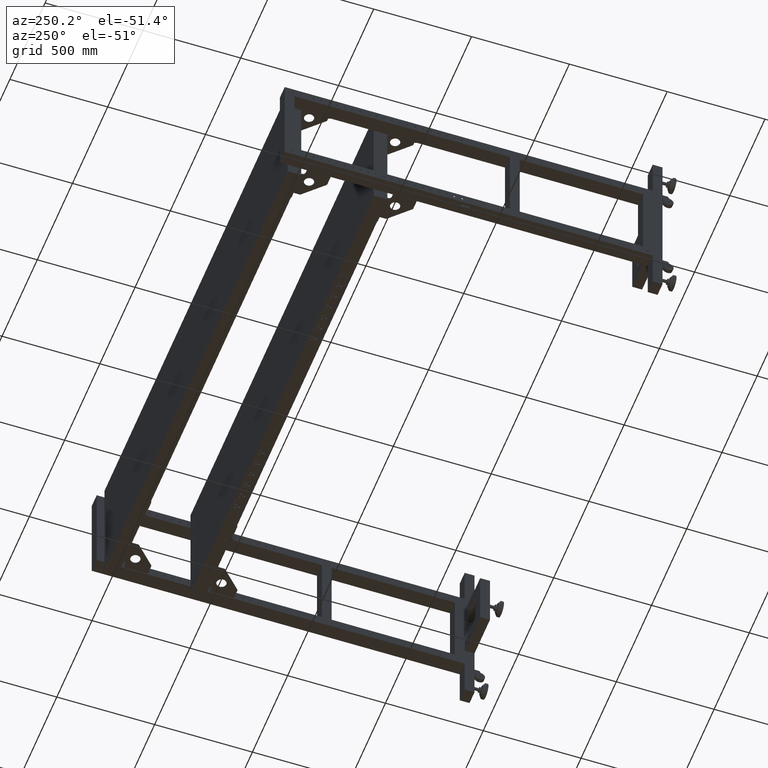
[diagram: clean part render]
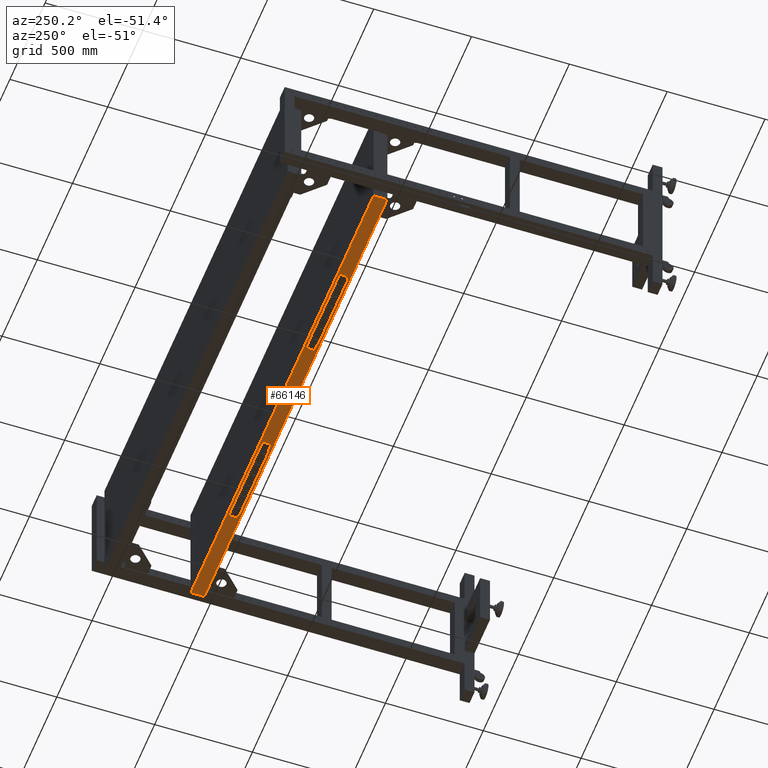
[diagram: same view with one face highlighted and labeled with its STEP entity id]
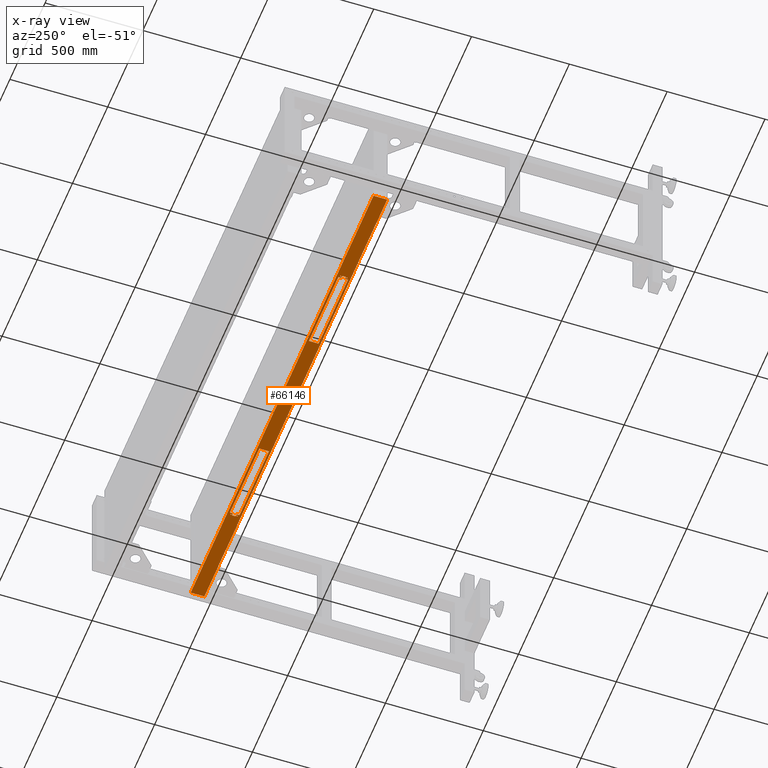
[diagram: x-ray of the same camera — body ghosted, the highlighted face saturated]
A machine part, auxiliary view. The second image highlights one B-rep face of the part: STEP entity #66146.
The next image is the same camera in x-ray: the body ghosted, the highlighted face saturated — about 0% of this face is hidden behind the body in this view.
In plain terms, the highlighted planar face has unit normal (0, -0, 1).
Its self-contained STEP definition (entity closure, byte-faithful):
#338 = VERTEX_POINT ( 'NONE', #43686 ) ;
#714 = VERTEX_POINT ( 'NONE', #44388 ) ;
#1466 = DIRECTION ( 'NONE',  ( 0.000000000000000000, 1.000000000000000000, 0.000000000000000000 ) ) ;
#1837 = ORIENTED_EDGE ( 'NONE', *, *, #66647, .T. ) ;
#2738 = CARTESIAN_POINT ( 'NONE',  ( -738.1724874371861915, 546.4410804020125170, -299.9999999999999432 ) ) ;
#2924 = CARTESIAN_POINT ( 'NONE',  ( 384.0460956221082256, 556.9410804020127443, -299.9999999999999432 ) ) ;
#3379 = ORIENTED_EDGE ( 'NONE', *, *, #38644, .F. ) ;
#3578 = CARTESIAN_POINT ( 'NONE',  ( 1329.827512562815855, 556.9410804020129717, -299.9999999999999432 ) ) ;
#3623 = LINE ( 'NONE', #21695, #32674 ) ;
#3806 = VERTEX_POINT ( 'NONE', #70338 ) ;
#4609 = ORIENTED_EDGE ( 'NONE', *, *, #36383, .F. ) ;
#4678 = EDGE_CURVE ( 'NONE', #26966, #43397, #72361, .T. ) ;
#5018 = DIRECTION ( 'NONE',  ( 0.000000000000000000, 1.000000000000000000, 0.000000000000000000 ) ) ;
#5571 = EDGE_LOOP ( 'NONE', ( #12234, #57216 ) ) ;
#5772 = CARTESIAN_POINT ( 'NONE',  ( 384.0460956221082256, 497.4410804020126875, -300.0000000000001137 ) ) ;
#6065 = CARTESIAN_POINT ( 'NONE',  ( -738.1724874371861915, 531.9410804020385513, -300.0000000000000000 ) ) ;
#6454 = DIRECTION ( 'NONE',  ( -2.399989573374237993E-16, 1.000000000000000000, 2.999999999999999839E-15 ) ) ;
#6612 = CARTESIAN_POINT ( 'NONE',  ( -320.3910704964782781, 546.4410804020125170, -299.9999999999999432 ) ) ;
#6682 = DIRECTION ( 'NONE',  ( -1.000000000000000000, -2.399989573374237993E-16, 0.000000000000000000 ) ) ;
#7322 = VERTEX_POINT ( 'NONE', #36478 ) ;
#7651 = VERTEX_POINT ( 'NONE', #52524 ) ;
#8101 = DIRECTION ( 'NONE',  ( 0.000000000000000000, 1.000000000000000000, 0.000000000000000000 ) ) ;
#8400 = FACE_OUTER_BOUND ( 'NONE', #51260, .T. ) ;
#8764 = LINE ( 'NONE', #2738, #9461 ) ;
#9438 = CARTESIAN_POINT ( 'NONE',  ( -320.3910704964782781, 497.4410804020126307, -300.0000000000001137 ) ) ;
#9461 = VECTOR ( 'NONE', #40491, 1000.000000000000000 ) ;
#10168 = VERTEX_POINT ( 'NONE', #6065 ) ;
#10387 = DIRECTION ( 'NONE',  ( 0.000000000000000000, -2.999999999999999839E-15, 1.000000000000000000 ) ) ;
#10477 = CARTESIAN_POINT ( 'NONE',  ( -738.1724874371861915, 511.9410804020125738, -300.0000000000000568 ) ) ;
#11096 = CARTESIAN_POINT ( 'NONE',  ( 801.8275125628161959, 546.4410804020127443, -299.9999999999999432 ) ) ;
#11117 = ORIENTED_EDGE ( 'NONE', *, *, #22255, .F. ) ;
#11310 = CARTESIAN_POINT ( 'NONE',  ( -751.1724874371860778, 511.9410804020125738, -300.0000000000000568 ) ) ;
#11528 = VECTOR ( 'NONE', #70311, 1000.000000000000000 ) ;
#11845 = CARTESIAN_POINT ( 'NONE',  ( -738.1724874371861915, 546.4410804020125170, -299.9999999999999432 ) ) ;
#12052 = EDGE_CURVE ( 'NONE', #58368, #52206, #27936, .T. ) ;
#12120 = VERTEX_POINT ( 'NONE', #31108 ) ;
#12234 = ORIENTED_EDGE ( 'NONE', *, *, #31163, .F. ) ;
#12388 = VECTOR ( 'NONE', #25430, 1000.000000000000000 ) ;
#12480 = LINE ( 'NONE', #49473, #71009 ) ;
#12534 = AXIS2_PLACEMENT_3D ( 'NONE', #43160, #24677, #48030 ) ;
#12706 = VECTOR ( 'NONE', #74913, 1000.000000000000000 ) ;
#13252 = AXIS2_PLACEMENT_3D ( 'NONE', #60122, #29935, #5018 ) ;
#13256 = EDGE_LOOP ( 'NONE', ( #69531, #57979 ) ) ;
#13673 = ORIENTED_EDGE ( 'NONE', *, *, #74057, .T. ) ;
#13840 = VECTOR ( 'NONE', #19853, 1000.000000000000000 ) ;
#14062 = FACE_BOUND ( 'NONE', #65938, .T. ) ;
#14096 = VECTOR ( 'NONE', #6682, 1000.000000000000000 ) ;
#14098 = DIRECTION ( 'NONE',  ( 0.000000000000000000, 1.000000000000000000, 0.000000000000000000 ) ) ;
#14570 = CARTESIAN_POINT ( 'NONE',  ( -751.1724874371860778, 531.9410804020390060, -300.0000000000000000 ) ) ;
#14655 = VERTEX_POINT ( 'NONE', #47767 ) ;
#14793 = LINE ( 'NONE', #76342, #11528 ) ;
#15024 = AXIS2_PLACEMENT_3D ( 'NONE', #65495, #10387, #46587 ) ;
#15423 = CIRCLE ( 'NONE', #69412, 2.600000000000046718 ) ;
#15957 = CARTESIAN_POINT ( 'NONE',  ( 810.8275125628160822, 537.9410804020128580, -299.9999999999999432 ) ) ;
#16357 = ORIENTED_EDGE ( 'NONE', *, *, #27205, .T. ) ;
#16456 = LINE ( 'NONE', #22098, #17083 ) ;
#16468 = ORIENTED_EDGE ( 'NONE', *, *, #48488, .F. ) ;
#16501 = DIRECTION ( 'NONE',  ( 0.000000000000000000, 2.999999999999999839E-15, -1.000000000000000000 ) ) ;
#16813 = CARTESIAN_POINT ( 'NONE',  ( 810.8275125628160822, 505.9410804020128012, -300.0000000000000568 ) ) ;
#17083 = VECTOR ( 'NONE', #71177, 1000.000000000000000 ) ;
#17588 = DIRECTION ( 'NONE',  ( 1.000000000000000000, 6.251255769285789110E-17, 1.875376730785736675E-31 ) ) ;
#17666 = EDGE_CURVE ( 'NONE', #24207, #58607, #77292, .T. ) ;
#17744 = VECTOR ( 'NONE', #47534, 1000.000000000000000 ) ;
#18943 = EDGE_CURVE ( 'NONE', #7651, #74224, #64832, .T. ) ;
#19526 = LINE ( 'NONE', #50105, #14096 ) ;
#19556 = AXIS2_PLACEMENT_3D ( 'NONE', #15957, #64660, #77120 ) ;
#19853 = DIRECTION ( 'NONE',  ( 0.000000000000000000, -1.000000000000000000, -2.603491776919587014E-15 ) ) ;
#20111 = CIRCLE ( 'NONE', #15024, 5.000000000000004441 ) ;
#20323 = CARTESIAN_POINT ( 'NONE',  ( 810.8275125628160822, 537.9410804020128580, -299.9999999999999432 ) ) ;
#20475 = DIRECTION ( 'NONE',  ( 2.399989573374237993E-16, -1.000000000000000000, -2.603491776919587014E-15 ) ) ;
#20732 = ORIENTED_EDGE ( 'NONE', *, *, #57660, .F. ) ;
#20742 = LINE ( 'NONE', #33605, #29626 ) ;
#20851 = CARTESIAN_POINT ( 'NONE',  ( -1266.172487437185964, 486.9410804020126307, -300.0000000000001137 ) ) ;
#21210 = ORIENTED_EDGE ( 'NONE', *, *, #39215, .T. ) ;
#21695 = CARTESIAN_POINT ( 'NONE',  ( 814.8275125628160822, 511.9410804020128012, -300.0000000000000568 ) ) ;
#22098 = CARTESIAN_POINT ( 'NONE',  ( -320.3910704964782781, 556.9410804020126307, -299.9999999999999432 ) ) ;
#22255 = EDGE_CURVE ( 'NONE', #38187, #10168, #26643, .T. ) ;
#22550 = LINE ( 'NONE', #2924, #26513 ) ;
#23849 = CIRCLE ( 'NONE', #49528, 2.600000000000046718 ) ;
#23980 = VECTOR ( 'NONE', #53325, 1000.000000000000000 ) ;
#24207 = VERTEX_POINT ( 'NONE', #67271 ) ;
#24677 = DIRECTION ( 'NONE',  ( 7.199968720122713773E-31, -2.999999999999999839E-15, 1.000000000000000000 ) ) ;
#25393 = ORIENTED_EDGE ( 'NONE', *, *, #39020, .T. ) ;
#25430 = DIRECTION ( 'NONE',  ( -1.000000000000000000, -2.399989573374237993E-16, 0.000000000000000000 ) ) ;
#25583 = VERTEX_POINT ( 'NONE', #76102 ) ;
#26513 = VECTOR ( 'NONE', #45526, 1000.000000000000000 ) ;
#26521 = LINE ( 'NONE', #51081, #41329 ) ;
#26643 = LINE ( 'NONE', #51201, #17744 ) ;
#26887 = VERTEX_POINT ( 'NONE', #53152 ) ;
#26890 = CARTESIAN_POINT ( 'NONE',  ( 1329.827512562815855, 486.9410804020129149, -300.0000000000001137 ) ) ;
#26966 = VERTEX_POINT ( 'NONE', #46712 ) ;
#27205 = EDGE_CURVE ( 'NONE', #42081, #25583, #20111, .T. ) ;
#27539 = CARTESIAN_POINT ( 'NONE',  ( 801.8275125628161959, 511.9410804020128012, -300.0000000000000568 ) ) ;
#27936 = CIRCLE ( 'NONE', #12534, 2.600000000000046718 ) ;
#28790 = CARTESIAN_POINT ( 'NONE',  ( 801.8275125628161959, 497.4410804020128012, -300.0000000000001137 ) ) ;
#29626 = VECTOR ( 'NONE', #69834, 1000.000000000000000 ) ;
#29838 = VECTOR ( 'NONE', #48723, 1000.000000000000000 ) ;
#29935 = DIRECTION ( 'NONE',  ( -7.199968720122713773E-31, 2.999999999999999839E-15, -1.000000000000000000 ) ) ;
#30345 = AXIS2_PLACEMENT_3D ( 'NONE', #3578, #75591, #20475 ) ;
#30408 = ORIENTED_EDGE ( 'NONE', *, *, #74958, .F. ) ;
#30598 = LINE ( 'NONE', #11310, #29838 ) ;
#30724 = VERTEX_POINT ( 'NONE', #20851 ) ;
#30746 = ORIENTED_EDGE ( 'NONE', *, *, #32185, .F. ) ;
#31041 = CIRCLE ( 'NONE', #56793, 2.600000000000046718 ) ;
#31108 = CARTESIAN_POINT ( 'NONE',  ( 1329.827512562815855, 556.9410804020129717, -299.9999999999999432 ) ) ;
#31163 = EDGE_CURVE ( 'NONE', #338, #7322, #59405, .T. ) ;
#31462 = LINE ( 'NONE', #56009, #12388 ) ;
#31524 = LINE ( 'NONE', #50059, #13840 ) ;
#31651 = VERTEX_POINT ( 'NONE', #26890 ) ;
#31893 = CARTESIAN_POINT ( 'NONE',  ( 809.8275125628161959, 531.9410804020390060, -300.0000000000000000 ) ) ;
#31920 = VECTOR ( 'NONE', #33844, 1000.000000000000000 ) ;
#32095 = VECTOR ( 'NONE', #70878, 1000.000000000000000 ) ;
#32185 = EDGE_CURVE ( 'NONE', #48181, #30724, #31524, .T. ) ;
#32407 = CARTESIAN_POINT ( 'NONE',  ( 1329.827512562815855, 556.9410804020129717, -299.9999999999999432 ) ) ;
#32674 = VECTOR ( 'NONE', #35757, 1000.000000000000000 ) ;
#32774 = LINE ( 'NONE', #32407, #69336 ) ;
#33098 = ORIENTED_EDGE ( 'NONE', *, *, #60429, .T. ) ;
#33279 = ORIENTED_EDGE ( 'NONE', *, *, #59544, .T. ) ;
#33381 = CARTESIAN_POINT ( 'NONE',  ( 809.8275125628161959, 516.9410804020128580, -300.0000000000000568 ) ) ;
#33605 = CARTESIAN_POINT ( 'NONE',  ( 814.8275125628160822, 531.9410804020392334, -300.0000000000000000 ) ) ;
#33844 = DIRECTION ( 'NONE',  ( -3.086684101596207610E-14, 1.000000000000000000, 2.042911185667979886E-15 ) ) ;
#34118 = FACE_BOUND ( 'NONE', #43176, .T. ) ;
#34189 = DIRECTION ( 'NONE',  ( 0.000000000000000000, -2.999999999999999839E-15, 1.000000000000000000 ) ) ;
#35757 = DIRECTION ( 'NONE',  ( 1.000000000000000000, -1.417154992000797826E-14, -4.323464663203620161E-29 ) ) ;
#36383 = EDGE_CURVE ( 'NONE', #77081, #79418, #45829, .T. ) ;
#36478 = CARTESIAN_POINT ( 'NONE',  ( -747.1724874371860778, 508.5410804020125966, -300.0000000000000568 ) ) ;
#37118 = CARTESIAN_POINT ( 'NONE',  ( -1266.172487437185964, 556.9410804020126307, -299.9999999999999432 ) ) ;
#38187 = VERTEX_POINT ( 'NONE', #59446 ) ;
#38408 = VERTEX_POINT ( 'NONE', #9438 ) ;
#38644 = EDGE_CURVE ( 'NONE', #42081, #714, #57605, .T. ) ;
#38674 = DIRECTION ( 'NONE',  ( 0.000000000000000000, 2.999999999999999839E-15, -1.000000000000000000 ) ) ;
#38855 = ORIENTED_EDGE ( 'NONE', *, *, #44958, .F. ) ;
#39020 = EDGE_CURVE ( 'NONE', #31651, #30724, #19526, .T. ) ;
#39215 = EDGE_CURVE ( 'NONE', #12120, #31651, #32774, .T. ) ;
#39403 = DIRECTION ( 'NONE',  ( -7.199968720122713773E-31, 2.999999999999999839E-15, -1.000000000000000000 ) ) ;
#40491 = DIRECTION ( 'NONE',  ( 0.000000000000000000, 1.000000000000000000, 2.042911185666243997E-15 ) ) ;
#40539 = LINE ( 'NONE', #58664, #56541 ) ;
#40756 = VERTEX_POINT ( 'NONE', #31893 ) ;
#40787 = EDGE_CURVE ( 'NONE', #3806, #14655, #42365, .T. ) ;
#41329 = VECTOR ( 'NONE', #6454, 1000.000000000000000 ) ;
#41678 = EDGE_CURVE ( 'NONE', #40756, #7651, #20742, .T. ) ;
#41728 = DIRECTION ( 'NONE',  ( 7.199968720122713773E-31, -2.999999999999999839E-15, 1.000000000000000000 ) ) ;
#42081 = VERTEX_POINT ( 'NONE', #46362 ) ;
#42365 = CIRCLE ( 'NONE', #48819, 2.600000000000046718 ) ;
#42707 = VERTEX_POINT ( 'NONE', #11845 ) ;
#42869 = CARTESIAN_POINT ( 'NONE',  ( 384.0460956221082256, 546.4410804020126307, -299.9999999999999432 ) ) ;
#42986 = ORIENTED_EDGE ( 'NONE', *, *, #73595, .T. ) ;
#43160 = CARTESIAN_POINT ( 'NONE',  ( 810.8275125628160822, 505.9410804020128012, -300.0000000000000568 ) ) ;
#43176 = EDGE_LOOP ( 'NONE', ( #30408, #38855, #69047, #11117, #33098, #3379, #16357, #43196, #73372, #16468 ) ) ;
#43196 = ORIENTED_EDGE ( 'NONE', *, *, #58993, .F. ) ;
#43397 = VERTEX_POINT ( 'NONE', #10477 ) ;
#43686 = CARTESIAN_POINT ( 'NONE',  ( -747.1724874371860778, 503.3410804020126648, -300.0000000000000568 ) ) ;
#44023 = AXIS2_PLACEMENT_3D ( 'NONE', #20323, #56966, #1466 ) ;
#44388 = CARTESIAN_POINT ( 'NONE',  ( -751.1724874371860778, 526.9410804020388923, -300.0000000000000000 ) ) ;
#44958 = EDGE_CURVE ( 'NONE', #42707, #56015, #40539, .T. ) ;
#44959 = EDGE_CURVE ( 'NONE', #52206, #58368, #15423, .T. ) ;
#45266 = AXIS2_PLACEMENT_3D ( 'NONE', #71617, #16501, #46680 ) ;
#45526 = DIRECTION ( 'NONE',  ( 2.399989573374237993E-16, -1.000000000000000000, -2.603491776919587014E-15 ) ) ;
#45829 = CIRCLE ( 'NONE', #58715, 5.000000000000004441 ) ;
#45899 = EDGE_LOOP ( 'NONE', ( #60048, #1837, #68939, #61227, #4609, #42986, #63597, #62651, #57659, #50522 ) ) ;
#46315 = CARTESIAN_POINT ( 'NONE',  ( 801.8275125628161959, 546.4410804020127443, -299.9999999999999432 ) ) ;
#46362 = CARTESIAN_POINT ( 'NONE',  ( -751.1724874371860778, 516.9410804020126307, -300.0000000000000568 ) ) ;
#46587 = DIRECTION ( 'NONE',  ( 0.000000000000000000, 1.000000000000000000, 0.000000000000000000 ) ) ;
#46680 = DIRECTION ( 'NONE',  ( 0.000000000000000000, 1.000000000000000000, 0.000000000000000000 ) ) ;
#46712 = CARTESIAN_POINT ( 'NONE',  ( -738.1724874371861915, 497.4410804020126307, -300.0000000000001137 ) ) ;
#47053 = DIRECTION ( 'NONE',  ( 0.000000000000000000, 1.000000000000000000, 0.000000000000000000 ) ) ;
#47534 = DIRECTION ( 'NONE',  ( 1.000000000000000000, -2.855621721992514943E-14, -8.566865165977544482E-29 ) ) ;
#47767 = CARTESIAN_POINT ( 'NONE',  ( -747.1724874371860778, 540.5410804020125397, -299.9999999999999432 ) ) ;
#48030 = DIRECTION ( 'NONE',  ( 0.000000000000000000, 1.000000000000000000, 0.000000000000000000 ) ) ;
#48181 = VERTEX_POINT ( 'NONE', #37118 ) ;
#48488 = EDGE_CURVE ( 'NONE', #38408, #26966, #12480, .T. ) ;
#48723 = DIRECTION ( 'NONE',  ( -1.000000000000000000, -1.441154887734540166E-14, -4.323464663203620161E-29 ) ) ;
#48819 = AXIS2_PLACEMENT_3D ( 'NONE', #68906, #51616, #56861 ) ;
#49308 = VERTEX_POINT ( 'NONE', #5772 ) ;
#49473 = CARTESIAN_POINT ( 'NONE',  ( -738.1724874371861915, 497.4410804020126307, -300.0000000000001137 ) ) ;
#49528 = AXIS2_PLACEMENT_3D ( 'NONE', #61197, #74448, #67613 ) ;
#49708 = CARTESIAN_POINT ( 'NONE',  ( 810.8275125628160822, 508.5410804020128239, -300.0000000000000568 ) ) ;
#50059 = CARTESIAN_POINT ( 'NONE',  ( -1266.172487437185964, 556.9410804020126307, -299.9999999999999432 ) ) ;
#50099 = EDGE_CURVE ( 'NONE', #58607, #79418, #3623, .T. ) ;
#50105 = CARTESIAN_POINT ( 'NONE',  ( 1329.827512562815855, 486.9410804020129149, -300.0000000000001137 ) ) ;
#50522 = ORIENTED_EDGE ( 'NONE', *, *, #55336, .T. ) ;
#51060 = FACE_BOUND ( 'NONE', #73808, .T. ) ;
#51081 = CARTESIAN_POINT ( 'NONE',  ( 814.8275125628160822, 531.9410804020392334, -300.0000000000000000 ) ) ;
#51201 = CARTESIAN_POINT ( 'NONE',  ( -751.1724874371860778, 531.9410804020390060, -300.0000000000000000 ) ) ;
#51260 = EDGE_LOOP ( 'NONE', ( #25393, #30746, #73330, #21210 ) ) ;
#51616 = DIRECTION ( 'NONE',  ( 0.000000000000000000, 2.999999999999999839E-15, -1.000000000000000000 ) ) ;
#52206 = VERTEX_POINT ( 'NONE', #62057 ) ;
#52524 = CARTESIAN_POINT ( 'NONE',  ( 801.8275125628161959, 531.9410804020387786, -300.0000000000000000 ) ) ;
#52648 = FACE_BOUND ( 'NONE', #45899, .T. ) ;
#53152 = CARTESIAN_POINT ( 'NONE',  ( 810.8275125628160822, 540.5410804020127671, -299.9999999999999432 ) ) ;
#53325 = DIRECTION ( 'NONE',  ( 1.000000000000000000, 1.774863996445659082E-16, -1.875376730785736675E-31 ) ) ;
#53464 = EDGE_CURVE ( 'NONE', #12120, #48181, #31462, .T. ) ;
#53580 = EDGE_CURVE ( 'NONE', #54469, #49308, #22550, .T. ) ;
#54032 = CARTESIAN_POINT ( 'NONE',  ( 814.8275125628160822, 526.9410804020391197, -300.0000000000000000 ) ) ;
#54139 = LINE ( 'NONE', #28790, #23980 ) ;
#54469 = VERTEX_POINT ( 'NONE', #42869 ) ;
#55336 = EDGE_CURVE ( 'NONE', #74224, #54469, #14793, .T. ) ;
#55823 = CARTESIAN_POINT ( 'NONE',  ( 809.8275125628161959, 511.9410804020128012, -300.0000000000000568 ) ) ;
#56009 = CARTESIAN_POINT ( 'NONE',  ( 1329.827512562815855, 556.9410804020129717, -299.9999999999999432 ) ) ;
#56015 = VERTEX_POINT ( 'NONE', #6612 ) ;
#56541 = VECTOR ( 'NONE', #17588, 1000.000000000000000 ) ;
#56793 = AXIS2_PLACEMENT_3D ( 'NONE', #57976, #38674, #8101 ) ;
#56823 = CARTESIAN_POINT ( 'NONE',  ( 814.8275125628160822, 516.9410804020128580, -300.0000000000000568 ) ) ;
#56861 = DIRECTION ( 'NONE',  ( 0.000000000000000000, 1.000000000000000000, 0.000000000000000000 ) ) ;
#56869 = ORIENTED_EDGE ( 'NONE', *, *, #40787, .F. ) ;
#56966 = DIRECTION ( 'NONE',  ( 7.199968720122713773E-31, -2.999999999999999839E-15, 1.000000000000000000 ) ) ;
#57083 = FACE_BOUND ( 'NONE', #13256, .T. ) ;
#57216 = ORIENTED_EDGE ( 'NONE', *, *, #76319, .F. ) ;
#57605 = LINE ( 'NONE', #14570, #12706 ) ;
#57659 = ORIENTED_EDGE ( 'NONE', *, *, #18943, .T. ) ;
#57660 = EDGE_CURVE ( 'NONE', #14655, #3806, #31041, .T. ) ;
#57976 = CARTESIAN_POINT ( 'NONE',  ( -747.1724874371860778, 537.9410804020126307, -299.9999999999999432 ) ) ;
#57979 = ORIENTED_EDGE ( 'NONE', *, *, #12052, .T. ) ;
#58368 = VERTEX_POINT ( 'NONE', #49708 ) ;
#58607 = VERTEX_POINT ( 'NONE', #27539 ) ;
#58664 = CARTESIAN_POINT ( 'NONE',  ( -738.1724874371861915, 546.4410804020125170, -299.9999999999999432 ) ) ;
#58675 = PLANE ( 'NONE',  #30345 ) ;
#58715 = AXIS2_PLACEMENT_3D ( 'NONE', #33381, #39403, #14098 ) ;
#58993 = EDGE_CURVE ( 'NONE', #43397, #25583, #30598, .T. ) ;
#59405 = CIRCLE ( 'NONE', #45266, 2.600000000000046718 ) ;
#59446 = CARTESIAN_POINT ( 'NONE',  ( -746.1724874371861915, 531.9410804020387786, -300.0000000000000000 ) ) ;
#59544 = EDGE_CURVE ( 'NONE', #68945, #26887, #72287, .T. ) ;
#59547 = AXIS2_PLACEMENT_3D ( 'NONE', #64395, #34189, #47053 ) ;
#59833 = EDGE_CURVE ( 'NONE', #40756, #77396, #60813, .T. ) ;
#59849 = DIRECTION ( 'NONE',  ( 0.000000000000000000, 1.000000000000000000, 0.000000000000000000 ) ) ;
#60048 = ORIENTED_EDGE ( 'NONE', *, *, #53580, .T. ) ;
#60122 = CARTESIAN_POINT ( 'NONE',  ( 809.8275125628161959, 526.9410804020391197, -300.0000000000000000 ) ) ;
#60429 = EDGE_CURVE ( 'NONE', #38187, #714, #62121, .T. ) ;
#60813 = CIRCLE ( 'NONE', #13252, 5.000000000000004441 ) ;
#61197 = CARTESIAN_POINT ( 'NONE',  ( -747.1724874371860778, 505.9410804020125738, -300.0000000000000568 ) ) ;
#61227 = ORIENTED_EDGE ( 'NONE', *, *, #50099, .T. ) ;
#62057 = CARTESIAN_POINT ( 'NONE',  ( 810.8275125628160822, 503.3410804020128353, -300.0000000000000568 ) ) ;
#62121 = CIRCLE ( 'NONE', #59547, 5.000000000000004441 ) ;
#62651 = ORIENTED_EDGE ( 'NONE', *, *, #41678, .T. ) ;
#63220 = CIRCLE ( 'NONE', #19556, 2.600000000000046718 ) ;
#63597 = ORIENTED_EDGE ( 'NONE', *, *, #59833, .F. ) ;
#64174 = VECTOR ( 'NONE', #67507, 1000.000000000000000 ) ;
#64395 = CARTESIAN_POINT ( 'NONE',  ( -746.1724874371861915, 526.9410804020388923, -300.0000000000000000 ) ) ;
#64660 = DIRECTION ( 'NONE',  ( 7.199968720122713773E-31, -2.999999999999999839E-15, 1.000000000000000000 ) ) ;
#64832 = LINE ( 'NONE', #46315, #32095 ) ;
#65495 = CARTESIAN_POINT ( 'NONE',  ( -746.1724874371861915, 516.9410804020126307, -300.0000000000000568 ) ) ;
#65938 = EDGE_LOOP ( 'NONE', ( #33279, #13673 ) ) ;
#66146 = ADVANCED_FACE ( 'NONE', ( #52648, #8400, #57083, #14062, #34118, #69951, #51060 ), #58675, .F. ) ;
#66647 = EDGE_CURVE ( 'NONE', #49308, #24207, #54139, .T. ) ;
#67271 = CARTESIAN_POINT ( 'NONE',  ( 801.8275125628161959, 497.4410804020128012, -300.0000000000001137 ) ) ;
#67507 = DIRECTION ( 'NONE',  ( 3.062684205862465112E-14, 1.000000000000000000, 2.042911185667979886E-15 ) ) ;
#67613 = DIRECTION ( 'NONE',  ( 0.000000000000000000, 1.000000000000000000, 0.000000000000000000 ) ) ;
#67990 = DIRECTION ( 'NONE',  ( -1.000000000000000000, -6.251255769285789110E-17, -1.875376730785736675E-31 ) ) ;
#68906 = CARTESIAN_POINT ( 'NONE',  ( -747.1724874371860778, 537.9410804020126307, -299.9999999999999432 ) ) ;
#68939 = ORIENTED_EDGE ( 'NONE', *, *, #17666, .T. ) ;
#68945 = VERTEX_POINT ( 'NONE', #73244 ) ;
#69047 = ORIENTED_EDGE ( 'NONE', *, *, #75271, .F. ) ;
#69336 = VECTOR ( 'NONE', #70584, 1000.000000000000000 ) ;
#69412 = AXIS2_PLACEMENT_3D ( 'NONE', #16813, #41728, #59849 ) ;
#69531 = ORIENTED_EDGE ( 'NONE', *, *, #44959, .T. ) ;
#69834 = DIRECTION ( 'NONE',  ( -1.000000000000000000, -2.879621617726257442E-14, -8.566865165977544482E-29 ) ) ;
#69951 = FACE_BOUND ( 'NONE', #5571, .T. ) ;
#70311 = DIRECTION ( 'NONE',  ( -1.000000000000000000, -1.774863996445659082E-16, 1.875376730785736675E-31 ) ) ;
#70338 = CARTESIAN_POINT ( 'NONE',  ( -747.1724874371860778, 535.3410804020127216, -300.0000000000000000 ) ) ;
#70584 = DIRECTION ( 'NONE',  ( 2.399989573374237993E-16, -1.000000000000000000, -2.603491776919587014E-15 ) ) ;
#70878 = DIRECTION ( 'NONE',  ( -2.399989573374237993E-16, 1.000000000000000000, 2.042911185666243997E-15 ) ) ;
#71009 = VECTOR ( 'NONE', #67990, 1000.000000000000000 ) ;
#71177 = DIRECTION ( 'NONE',  ( 0.000000000000000000, -1.000000000000000000, -2.603491776919587014E-15 ) ) ;
#71617 = CARTESIAN_POINT ( 'NONE',  ( -747.1724874371860778, 505.9410804020125738, -300.0000000000000568 ) ) ;
#72287 = CIRCLE ( 'NONE', #44023, 2.600000000000046718 ) ;
#72361 = LINE ( 'NONE', #78798, #64174 ) ;
#73244 = CARTESIAN_POINT ( 'NONE',  ( 810.8275125628160822, 535.3410804020129490, -300.0000000000000000 ) ) ;
#73330 = ORIENTED_EDGE ( 'NONE', *, *, #53464, .F. ) ;
#73372 = ORIENTED_EDGE ( 'NONE', *, *, #4678, .F. ) ;
#73595 = EDGE_CURVE ( 'NONE', #77081, #77396, #26521, .T. ) ;
#73808 = EDGE_LOOP ( 'NONE', ( #56869, #20732 ) ) ;
#74057 = EDGE_CURVE ( 'NONE', #26887, #68945, #63220, .T. ) ;
#74224 = VERTEX_POINT ( 'NONE', #11096 ) ;
#74448 = DIRECTION ( 'NONE',  ( 0.000000000000000000, 2.999999999999999839E-15, -1.000000000000000000 ) ) ;
#74913 = DIRECTION ( 'NONE',  ( 0.000000000000000000, 1.000000000000000000, 2.999999999999999839E-15 ) ) ;
#74958 = EDGE_CURVE ( 'NONE', #56015, #38408, #16456, .T. ) ;
#75271 = EDGE_CURVE ( 'NONE', #10168, #42707, #8764, .T. ) ;
#75591 = DIRECTION ( 'NONE',  ( 6.248353118972576258E-31, -2.603491776919587014E-15, 1.000000000000000000 ) ) ;
#76102 = CARTESIAN_POINT ( 'NONE',  ( -746.1724874371861915, 511.9410804020125738, -300.0000000000000568 ) ) ;
#76319 = EDGE_CURVE ( 'NONE', #7322, #338, #23849, .T. ) ;
#76342 = CARTESIAN_POINT ( 'NONE',  ( 801.8275125628161959, 546.4410804020127443, -299.9999999999999432 ) ) ;
#76472 = CARTESIAN_POINT ( 'NONE',  ( 801.8275125628161959, 511.9410804020128012, -300.0000000000000568 ) ) ;
#77081 = VERTEX_POINT ( 'NONE', #56823 ) ;
#77120 = DIRECTION ( 'NONE',  ( 0.000000000000000000, 1.000000000000000000, 0.000000000000000000 ) ) ;
#77292 = LINE ( 'NONE', #76472, #31920 ) ;
#77396 = VERTEX_POINT ( 'NONE', #54032 ) ;
#78798 = CARTESIAN_POINT ( 'NONE',  ( -738.1724874371861915, 511.9410804020125738, -300.0000000000000568 ) ) ;
#79418 = VERTEX_POINT ( 'NONE', #55823 ) ;